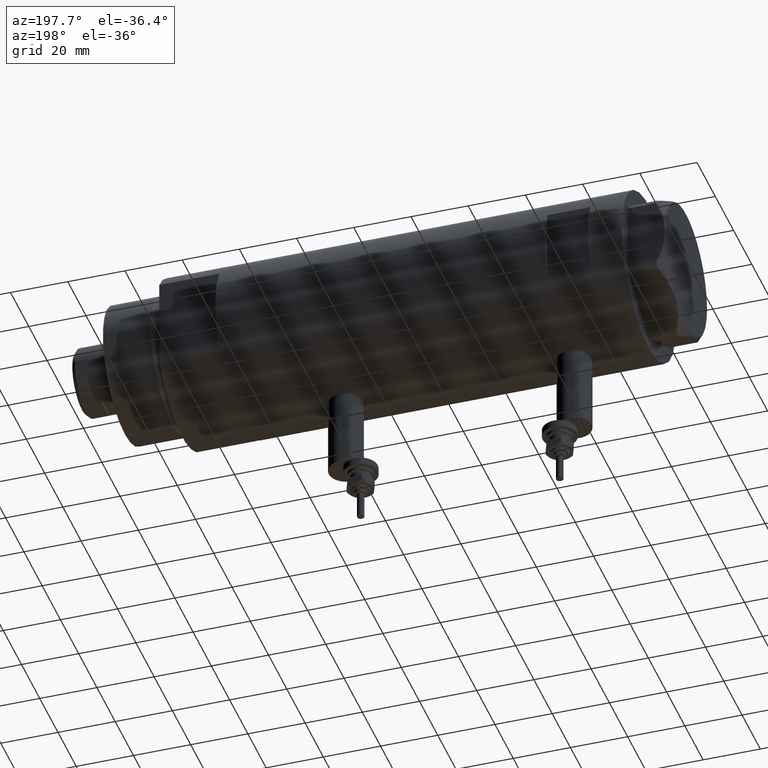
[diagram: clean part render]
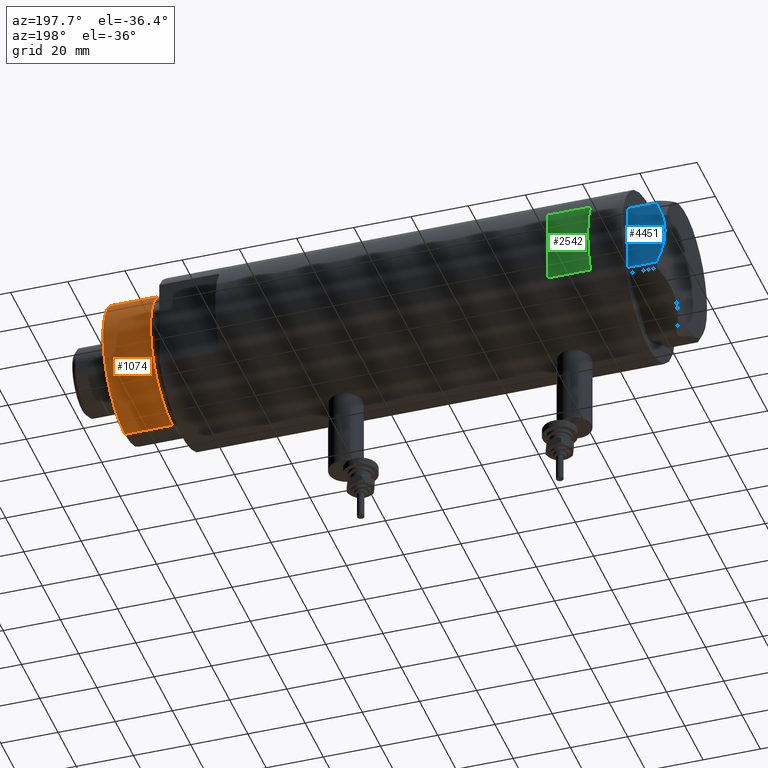
[diagram: same view with three faces highlighted in distinct colors, each labeled with its STEP entity id]
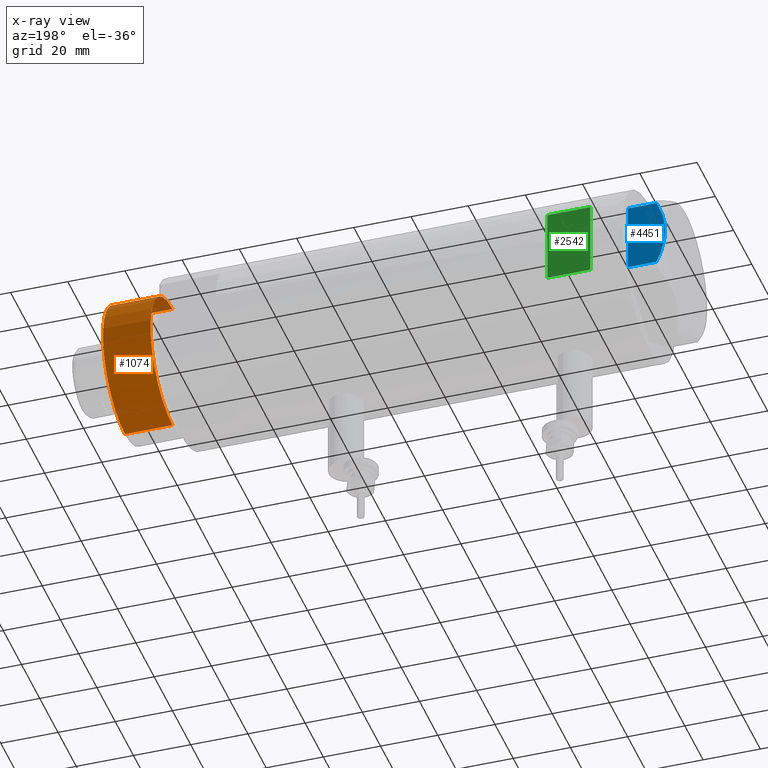
[diagram: x-ray of the same camera — body ghosted, the three highlighted faces saturated]
A machine part, auxiliary view with three faces highlighted in distinct colors.
The next image is the same camera in x-ray (body ghosted, the three faces saturated) — at least one of them is partly hidden behind the body in this view.
Their STEP definitions:

[orange] entity #1074 — the highlighted cylindrical surface (partial cylindrical patch) has radius 24 mm, axis along (-1, -0, 0).
#50 = CARTESIAN_POINT ( 'NONE',  ( 0.000000000000000000, 0.000000000000000000, 41.00000000000000000 ) ) ;
#293 = DIRECTION ( 'NONE',  ( -0.000000000000000000, -0.000000000000000000, 1.000000000000000000 ) ) ;
#427 = CARTESIAN_POINT ( 'NONE',  ( 0.000000000000000000, 0.000000000000000000, 41.00000000000000000 ) ) ;
#523 = DIRECTION ( 'NONE',  ( 1.000000000000000000, 0.000000000000000000, 0.000000000000000000 ) ) ;
#702 = EDGE_CURVE ( 'NONE', #2719, #1498, #2689, .T. ) ;
#736 = CARTESIAN_POINT ( 'NONE',  ( 24.00000000000000355, 2.939152317953648289E-15, 24.37384048104054557 ) ) ;
#905 = DIRECTION ( 'NONE',  ( 0.000000000000000000, 0.000000000000000000, 1.000000000000000000 ) ) ;
#1074 = ADVANCED_FACE ( 'NONE', ( #2911 ), #5129, .T. ) ;
#1431 = DIRECTION ( 'NONE',  ( -1.000000000000000000, 0.000000000000000000, 0.000000000000000000 ) ) ;
#1443 = AXIS2_PLACEMENT_3D ( 'NONE', #50, #3316, #1431 ) ;
#1447 = DIRECTION ( 'NONE',  ( -0.000000000000000000, -0.000000000000000000, -1.000000000000000000 ) ) ;
#1498 = VERTEX_POINT ( 'NONE', #5201 ) ;
#1834 = CIRCLE ( 'NONE', #2037, 24.00000000000000355 ) ;
#1984 = CARTESIAN_POINT ( 'NONE',  ( -24.00000000000000355, 0.000000000000000000, 41.00000000000000000 ) ) ;
#2037 = AXIS2_PLACEMENT_3D ( 'NONE', #427, #905, #523 ) ;
#2350 = CARTESIAN_POINT ( 'NONE',  ( -24.00000000000000355, 0.000000000000000000, 41.00000000000000000 ) ) ;
#2639 = EDGE_CURVE ( 'NONE', #5342, #2719, #3756, .T. ) ;
#2673 = CARTESIAN_POINT ( 'NONE',  ( 24.00000000000000355, 2.939152317953648289E-15, 41.00000000000000000 ) ) ;
#2686 = EDGE_LOOP ( 'NONE', ( #4302, #3665, #5104, #2925 ) ) ;
#2689 = CIRCLE ( 'NONE', #2878, 24.00000000000000355 ) ;
#2693 = VECTOR ( 'NONE', #1447, 1000.000000000000000 ) ;
#2719 = VERTEX_POINT ( 'NONE', #736 ) ;
#2878 = AXIS2_PLACEMENT_3D ( 'NONE', #5244, #293, #4890 ) ;
#2907 = EDGE_CURVE ( 'NONE', #5467, #1498, #4683, .T. ) ;
#2911 = FACE_OUTER_BOUND ( 'NONE', #2686, .T. ) ;
#2925 = ORIENTED_EDGE ( 'NONE', *, *, #2907, .F. ) ;
#3316 = DIRECTION ( 'NONE',  ( -0.000000000000000000, -0.000000000000000000, -1.000000000000000000 ) ) ;
#3665 = ORIENTED_EDGE ( 'NONE', *, *, #2639, .T. ) ;
#3722 = CARTESIAN_POINT ( 'NONE',  ( 24.00000000000000355, 2.939152317953648289E-15, 41.00000000000000000 ) ) ;
#3756 = LINE ( 'NONE', #3722, #2693 ) ;
#3774 = DIRECTION ( 'NONE',  ( -0.000000000000000000, -0.000000000000000000, -1.000000000000000000 ) ) ;
#3776 = EDGE_CURVE ( 'NONE', #5342, #5467, #1834, .T. ) ;
#4302 = ORIENTED_EDGE ( 'NONE', *, *, #3776, .F. ) ;
#4683 = LINE ( 'NONE', #1984, #4987 ) ;
#4890 = DIRECTION ( 'NONE',  ( 1.000000000000000000, 0.000000000000000000, 0.000000000000000000 ) ) ;
#4987 = VECTOR ( 'NONE', #3774, 1000.000000000000000 ) ;
#5104 = ORIENTED_EDGE ( 'NONE', *, *, #702, .T. ) ;
#5129 = CYLINDRICAL_SURFACE ( 'NONE', #1443, 24.00000000000000355 ) ;
#5201 = CARTESIAN_POINT ( 'NONE',  ( -24.00000000000000355, 0.000000000000000000, 24.37384048104054557 ) ) ;
#5244 = CARTESIAN_POINT ( 'NONE',  ( 0.000000000000000000, 0.000000000000000000, 24.37384048104054557 ) ) ;
#5342 = VERTEX_POINT ( 'NONE', #2673 ) ;
#5467 = VERTEX_POINT ( 'NONE', #2350 ) ;

[blue] entity #4451 — the highlighted planar face has unit normal (0, -1, 0).
#1 = CARTESIAN_POINT ( 'NONE',  ( 22.99999999999982947, 11.68282849742354301, 10.20637235269540888 ) ) ;
#27 = CARTESIAN_POINT ( 'NONE',  ( 22.99999999999992184, 2.643615312305319875, 12.85430456063626714 ) ) ;
#72 = EDGE_CURVE ( 'NONE', #1973, #330, #4666, .T. ) ;
#105 = VECTOR ( 'NONE', #3119, 1000.000000000000000 ) ;
#274 = CARTESIAN_POINT ( 'NONE',  ( 23.00000000000003197, -8.246028007352199651, 11.57113180864690705 ) ) ;
#313 = AXIS2_PLACEMENT_3D ( 'NONE', #1858, #4109, #3733 ) ;
#330 = VERTEX_POINT ( 'NONE', #4465 ) ;
#446 = CARTESIAN_POINT ( 'NONE',  ( 22.99999999999984723, 10.22738952213813590, 10.83247031367476687 ) ) ;
#609 = VERTEX_POINT ( 'NONE', #4779 ) ;
#668 = B_SPLINE_CURVE_WITH_KNOTS ( 'NONE', 3,
 ( #4369, #3925, #5759, #2621, #274, #3090, #1292, #1659, #1195, #1716 ),
 .UNSPECIFIED., .F., .F.,
 ( 4, 2, 2, 2, 4 ),
 ( 0.03516523594057416324, 0.03831677594541234994, 0.03989254594783143981, 0.04146831595025052969, 0.04777139595992689614 ),
 .UNSPECIFIED. ) ;
#725 = PLANE ( 'NONE',  #313 ) ;
#796 = EDGE_CURVE ( 'NONE', #1287, #330, #2991, .T. ) ;
#892 = ORIENTED_EDGE ( 'NONE', *, *, #72, .F. ) ;
#954 = CARTESIAN_POINT ( 'NONE',  ( 23.00000000000008527, -13.27905619136115867, 0.000000000000000000 ) ) ;
#997 = CARTESIAN_POINT ( 'NONE',  ( 22.99999999999995026, 2.373657066004705010E-13, 13.00000000000000000 ) ) ;
#1050 = CARTESIAN_POINT ( 'NONE',  ( 23.00000000000007461, -12.15905619136117721, 0.000000000000000000 ) ) ;
#1139 = VERTEX_POINT ( 'NONE', #1050 ) ;
#1152 = VECTOR ( 'NONE', #3611, 1000.000000000000000 ) ;
#1195 = CARTESIAN_POINT ( 'NONE',  ( 22.99999999999996447, -2.122900714017910584, 13.00000000000008882 ) ) ;
#1241 = EDGE_CURVE ( 'NONE', #609, #1139, #3483, .T. ) ;
#1287 = VERTEX_POINT ( 'NONE', #2392 ) ;
#1292 = CARTESIAN_POINT ( 'NONE',  ( 23.00000000000001421, -6.734330413511261604, 12.03938974125266448 ) ) ;
#1659 = CARTESIAN_POINT ( 'NONE',  ( 22.99999999999999289, -4.194757081058820170, 12.70300035152520479 ) ) ;
#1716 = CARTESIAN_POINT ( 'NONE',  ( 22.99999999999995026, 2.373657066004705010E-13, 13.00000000000000000 ) ) ;
#1858 = CARTESIAN_POINT ( 'NONE',  ( 23.00000000000008527, -13.27905619136115867, 13.00000000000000000 ) ) ;
#1900 = CARTESIAN_POINT ( 'NONE',  ( 22.99999999999993960, 1.063773509315898647, 12.98143808360683060 ) ) ;
#1973 = VERTEX_POINT ( 'NONE', #5168 ) ;
#2295 = EDGE_CURVE ( 'NONE', #1139, #1287, #3231, .T. ) ;
#2319 = EDGE_LOOP ( 'NONE', ( #2823, #4888, #2780, #4160, #892 ) ) ;
#2352 = CARTESIAN_POINT ( 'NONE',  ( 22.99999999999986500, 8.252113629125442884, 11.58164206268022056 ) ) ;
#2392 = CARTESIAN_POINT ( 'NONE',  ( 22.99999999999982236, 12.15905619136166571, 0.000000000000000000 ) ) ;
#2621 = CARTESIAN_POINT ( 'NONE',  ( 23.00000000000004263, -8.748091966971225375, 11.39681897828457124 ) ) ;
#2780 = ORIENTED_EDGE ( 'NONE', *, *, #2295, .T. ) ;
#2823 = ORIENTED_EDGE ( 'NONE', *, *, #4716, .F. ) ;
#2991 = LINE ( 'NONE', #3941, #5180 ) ;
#3090 = CARTESIAN_POINT ( 'NONE',  ( 23.00000000000002132, -7.239756182922042704, 11.89218606342284978 ) ) ;
#3119 = DIRECTION ( 'NONE',  ( 0.000000000000000000, 0.000000000000000000, -1.000000000000000000 ) ) ;
#3207 = CARTESIAN_POINT ( 'NONE',  ( 22.99999999999987210, 7.253003311474555126, 11.90327681034763430 ) ) ;
#3231 = LINE ( 'NONE', #954, #1152 ) ;
#3272 = CARTESIAN_POINT ( 'NONE',  ( 22.99999999999984368, 11.20155944044835472, 10.42110268263274264 ) ) ;
#3483 = LINE ( 'NONE', #5738, #105 ) ;
#3611 = DIRECTION ( 'NONE',  ( -1.032024811306395780E-14, 1.000000000000000000, 0.000000000000000000 ) ) ;
#3733 = DIRECTION ( 'NONE',  ( 1.032024811306395780E-14, -1.000000000000000000, 0.000000000000000000 ) ) ;
#3925 = CARTESIAN_POINT ( 'NONE',  ( 23.00000000000006750, -11.20825071633899483, 10.42817330637845608 ) ) ;
#3941 = CARTESIAN_POINT ( 'NONE',  ( 22.99999999999982236, 12.15905619136166571, 13.00000000000000000 ) ) ;
#4109 = DIRECTION ( 'NONE',  ( -1.000000000000000000, -1.032024811306395780E-14, 0.000000000000000000 ) ) ;
#4127 = CARTESIAN_POINT ( 'NONE',  ( 22.99999999999994671, 0.5295934231899315225, 13.00000000000009770 ) ) ;
#4160 = ORIENTED_EDGE ( 'NONE', *, *, #796, .T. ) ;
#4369 = CARTESIAN_POINT ( 'NONE',  ( 23.00000000000007461, -12.15905619136117544, 9.983800287807614637 ) ) ;
#4451 = ADVANCED_FACE ( 'NONE', ( #5292 ), #725, .F. ) ;
#4465 = CARTESIAN_POINT ( 'NONE',  ( 22.99999999999982236, 12.15905619136166038, 9.983800287807609308 ) ) ;
#4552 = CARTESIAN_POINT ( 'NONE',  ( 22.99999999999990052, 5.228918809624289565, 12.43333703384985256 ) ) ;
#4666 = B_SPLINE_CURVE_WITH_KNOTS ( 'NONE', 3,
 ( #997, #4127, #1900, #5453, #27, #5073, #4552, #3207, #2352, #5011, #446, #3272, #1, #5108 ),
 .UNSPECIFIED., .F., .F.,
 ( 4, 2, 2, 2, 2, 2, 4 ),
 ( 0.04777139595992689614, 0.04934380568070229761, 0.05091621540147769215, 0.05406103484302849510, 0.05720585428457929111, 0.05877826400535468565, 0.06035067372613008713 ),
 .UNSPECIFIED. ) ;
#4716 = EDGE_CURVE ( 'NONE', #609, #1973, #668, .T. ) ;
#4779 = CARTESIAN_POINT ( 'NONE',  ( 23.00000000000007461, -12.15905619136117544, 9.983800287807614637 ) ) ;
#4832 = DIRECTION ( 'NONE',  ( 0.000000000000000000, 0.000000000000000000, 1.000000000000000000 ) ) ;
#4888 = ORIENTED_EDGE ( 'NONE', *, *, #1241, .T. ) ;
#5011 = CARTESIAN_POINT ( 'NONE',  ( 22.99999999999985434, 9.734726261263476843, 11.02892470009566139 ) ) ;
#5073 = CARTESIAN_POINT ( 'NONE',  ( 22.99999999999990763, 4.203926054642130872, 12.64168122312251263 ) ) ;
#5108 = CARTESIAN_POINT ( 'NONE',  ( 22.99999999999982236, 12.15905619136166038, 9.983800287807609308 ) ) ;
#5168 = CARTESIAN_POINT ( 'NONE',  ( 22.99999999999995026, 2.373657066004705010E-13, 13.00000000000000000 ) ) ;
#5180 = VECTOR ( 'NONE', #4832, 1000.000000000000000 ) ;
#5292 = FACE_OUTER_BOUND ( 'NONE', #2319, .T. ) ;
#5453 = CARTESIAN_POINT ( 'NONE',  ( 22.99999999999992539, 2.119709279062088836, 12.90853521217320043 ) ) ;
#5738 = CARTESIAN_POINT ( 'NONE',  ( 23.00000000000007461, -12.15905619136117721, 13.00000000000000000 ) ) ;
#5759 = CARTESIAN_POINT ( 'NONE',  ( 23.00000000000005684, -10.23890159976106240, 10.84081242829091529 ) ) ;

[green] entity #2542 — the highlighted planar face has unit normal (0, -1, -0).
#45 = EDGE_CURVE ( 'NONE', #2642, #2360, #1472, .T. ) ;
#60 = DIRECTION ( 'NONE',  ( 0.000000000000000000, 0.000000000000000000, -1.000000000000000000 ) ) ;
#238 = DIRECTION ( 'NONE',  ( 1.000000000000000000, -0.000000000000000000, -0.000000000000000000 ) ) ;
#294 = DIRECTION ( 'NONE',  ( -0.000000000000000000, -0.000000000000000000, -1.000000000000000000 ) ) ;
#479 = DIRECTION ( 'NONE',  ( 0.000000000000000000, 0.000000000000000000, 1.000000000000000000 ) ) ;
#749 = VECTOR ( 'NONE', #294, 1000.000000000000000 ) ;
#1061 = CARTESIAN_POINT ( 'NONE',  ( -12.96148139681574030, 26.50000000000000355, 45.09999999999998721 ) ) ;
#1160 = LINE ( 'NONE', #4384, #1450 ) ;
#1333 = VECTOR ( 'NONE', #479, 1000.000000000000000 ) ;
#1450 = VECTOR ( 'NONE', #4331, 1000.000000000000000 ) ;
#1472 = LINE ( 'NONE', #2767, #1333 ) ;
#1708 = LINE ( 'NONE', #3021, #5414 ) ;
#1993 = PLANE ( 'NONE',  #2883 ) ;
#2068 = ORIENTED_EDGE ( 'NONE', *, *, #45, .T. ) ;
#2098 = EDGE_CURVE ( 'NONE', #5870, #3344, #5774, .T. ) ;
#2360 = VERTEX_POINT ( 'NONE', #5191 ) ;
#2542 = ADVANCED_FACE ( 'NONE', ( #4693 ), #1993, .F. ) ;
#2642 = VERTEX_POINT ( 'NONE', #1061 ) ;
#2767 = CARTESIAN_POINT ( 'NONE',  ( -12.96148139681573319, 26.49999999999999645, -70.09999999999999432 ) ) ;
#2883 = AXIS2_PLACEMENT_3D ( 'NONE', #5638, #3276, #60 ) ;
#2910 = CARTESIAN_POINT ( 'NONE',  ( 12.96148139681573319, 26.49999999999998934, 60.09999999999998721 ) ) ;
#2949 = ORIENTED_EDGE ( 'NONE', *, *, #2098, .T. ) ;
#3021 = CARTESIAN_POINT ( 'NONE',  ( -29.50000000000000355, 26.50000000000000355, 60.09999999999998721 ) ) ;
#3029 = EDGE_CURVE ( 'NONE', #2642, #3344, #1160, .T. ) ;
#3276 = DIRECTION ( 'NONE',  ( 0.000000000000000000, -1.000000000000000000, -0.000000000000000000 ) ) ;
#3344 = VERTEX_POINT ( 'NONE', #3996 ) ;
#3985 = ORIENTED_EDGE ( 'NONE', *, *, #3029, .F. ) ;
#3996 = CARTESIAN_POINT ( 'NONE',  ( 12.96148139681571898, 26.50000000000000355, 45.09999999999998721 ) ) ;
#4331 = DIRECTION ( 'NONE',  ( 1.000000000000000000, -0.000000000000000000, -0.000000000000000000 ) ) ;
#4384 = CARTESIAN_POINT ( 'NONE',  ( -29.50000000000000355, 26.50000000000000355, 45.09999999999998721 ) ) ;
#4526 = ORIENTED_EDGE ( 'NONE', *, *, #5217, .T. ) ;
#4632 = EDGE_LOOP ( 'NONE', ( #2949, #3985, #2068, #4526 ) ) ;
#4693 = FACE_OUTER_BOUND ( 'NONE', #4632, .T. ) ;
#5191 = CARTESIAN_POINT ( 'NONE',  ( -12.96148139681573319, 26.49999999999998934, 60.09999999999998721 ) ) ;
#5217 = EDGE_CURVE ( 'NONE', #2360, #5870, #1708, .T. ) ;
#5414 = VECTOR ( 'NONE', #238, 1000.000000000000000 ) ;
#5638 = CARTESIAN_POINT ( 'NONE',  ( -29.50000000000000355, 26.50000000000000355, 60.09999999999998721 ) ) ;
#5719 = CARTESIAN_POINT ( 'NONE',  ( 12.96148139681573319, 26.49999999999999645, -70.09999999999999432 ) ) ;
#5774 = LINE ( 'NONE', #5719, #749 ) ;
#5870 = VERTEX_POINT ( 'NONE', #2910 ) ;